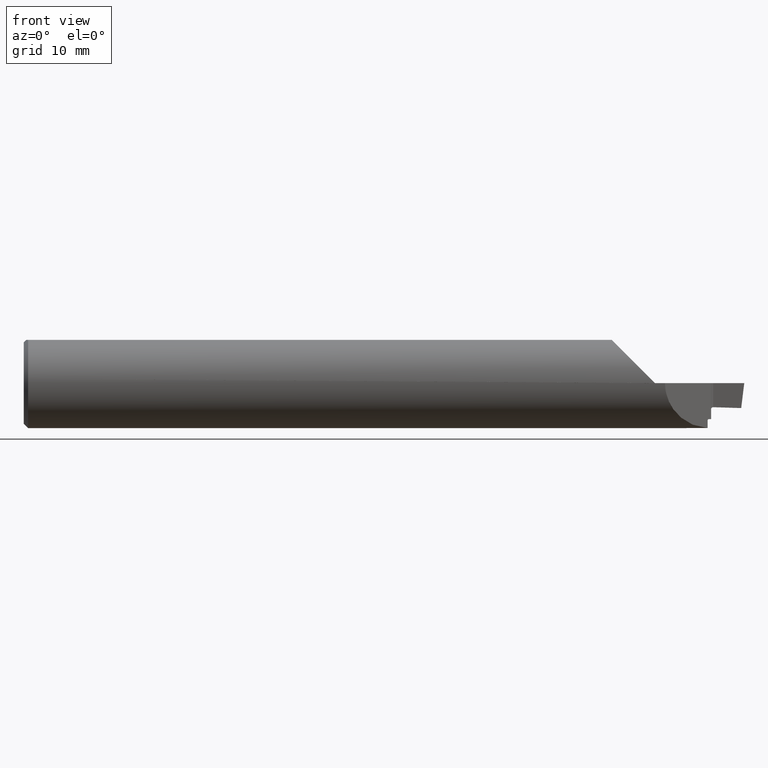
[diagram: clean part render]
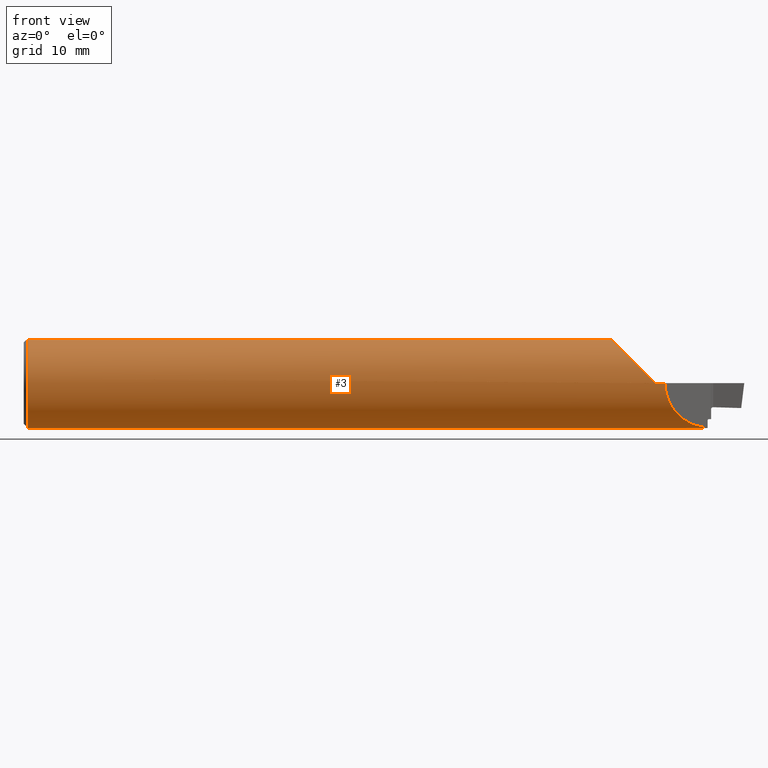
[diagram: same view with one face highlighted and labeled with its STEP entity id]
A machine part, front view. The second image highlights one B-rep face of the part: STEP entity #3.
In plain terms, the highlighted cylindrical surface (partial cylindrical patch) has radius 3.9649 mm, axis along (-1, -0, -0).
Its self-contained STEP definition (entity closure, byte-faithful):
#2 = CARTESIAN_POINT ( 'NONE',  ( 1.918500000000000316, 0.03081474338883895270, -0.1530283032313957403 ) ) ;
#3 = ADVANCED_FACE ( 'NONE', ( #369 ), #628, .T. ) ;
#14 = EDGE_CURVE ( 'NONE', #148, #140, #558, .T. ) ;
#22 = VERTEX_POINT ( 'NONE', #567 ) ;
#49 = VECTOR ( 'NONE', #631, 39.37007874015748143 ) ;
#51 = CIRCLE ( 'NONE', #116, 0.1560999999999999888 ) ;
#61 = CARTESIAN_POINT ( 'NONE',  ( 0.000000000000000000, -0.04286257108480545641, 0.1500999999999999834 ) ) ;
#74 = ORIENTED_EDGE ( 'NONE', *, *, #772, .T. ) ;
#75 = EDGE_CURVE ( 'NONE', #776, #186, #680, .T. ) ;
#79 = VERTEX_POINT ( 'NONE', #424 ) ;
#96 = VERTEX_POINT ( 'NONE', #496 ) ;
#104 = DIRECTION ( 'NONE',  ( 1.000000000000000000, 0.000000000000000000, 0.000000000000000000 ) ) ;
#110 = CARTESIAN_POINT ( 'NONE',  ( 0.01499999999999970281, 0.000000000000000000, -0.1560999999999999888 ) ) ;
#111 = DIRECTION ( 'NONE',  ( 0.000000000000000000, 0.000000000000000000, 1.000000000000000000 ) ) ;
#112 = DIRECTION ( 'NONE',  ( 1.000000000000000000, -3.711749991391663214E-17, 0.000000000000000000 ) ) ;
#113 = EDGE_CURVE ( 'NONE', #186, #148, #396, .T. ) ;
#114 = CARTESIAN_POINT ( 'NONE',  ( 0.000000000000000000, 0.000000000000000000, 0.000000000000000000 ) ) ;
#116 = AXIS2_PLACEMENT_3D ( 'NONE', #694, #556, #748 ) ;
#117 = VECTOR ( 'NONE', #402, 39.37007874015748143 ) ;
#118 = CARTESIAN_POINT ( 'NONE',  ( 2.039999999999999591, -0.04286257108480545641, 0.1500999999999999834 ) ) ;
#121 = LINE ( 'NONE', #61, #314 ) ;
#126 = ORIENTED_EDGE ( 'NONE', *, *, #263, .T. ) ;
#140 = VERTEX_POINT ( 'NONE', #517 ) ;
#148 = VERTEX_POINT ( 'NONE', #774 ) ;
#152 = ORIENTED_EDGE ( 'NONE', *, *, #501, .F. ) ;
#160 = CARTESIAN_POINT ( 'NONE',  ( 0.01499999999999970281, 0.04286257108480545641, 0.1500999999999999834 ) ) ;
#168 = CARTESIAN_POINT ( 'NONE',  ( 0.000000000000000000, -0.1560999999999999888, 0.000000000000000000 ) ) ;
#172 = CARTESIAN_POINT ( 'NONE',  ( 2.372167059642986242, 0.03081474338882099831, -0.1530283032314002645 ) ) ;
#186 = VERTEX_POINT ( 'NONE', #447 ) ;
#219 = EDGE_CURVE ( 'NONE', #776, #344, #457, .T. ) ;
#233 = CARTESIAN_POINT ( 'NONE',  ( 2.372391662347563379, 0.01794726306141073563, -0.1556193801497015861 ) ) ;
#238 = DIRECTION ( 'NONE',  ( 0.000000000000000000, 1.000000000000000000, 0.000000000000000000 ) ) ;
#246 = DIRECTION ( 'NONE',  ( 0.000000000000000000, 0.000000000000000000, -1.000000000000000000 ) ) ;
#263 = EDGE_CURVE ( 'NONE', #609, #96, #121, .T. ) ;
#268 = CARTESIAN_POINT ( 'NONE',  ( 2.039999999999999591, -0.04286257108480545641, 0.1500999999999999834 ) ) ;
#271 = CARTESIAN_POINT ( 'NONE',  ( 2.189999999999999947, -0.1560999679692472164, 9.999999999982123341E-05 ) ) ;
#277 = ORIENTED_EDGE ( 'NONE', *, *, #14, .T. ) ;
#279 = CARTESIAN_POINT ( 'NONE',  ( 0.000000000000000000, 0.04286257108480545641, 0.1500999999999999834 ) ) ;
#281 = ORIENTED_EDGE ( 'NONE', *, *, #518, .T. ) ;
#314 = VECTOR ( 'NONE', #374, 39.37007874015748143 ) ;
#323 = ORIENTED_EDGE ( 'NONE', *, *, #75, .T. ) ;
#326 = ORIENTED_EDGE ( 'NONE', *, *, #490, .F. ) ;
#342 = AXIS2_PLACEMENT_3D ( 'NONE', #489, #112, #238 ) ;
#344 = VERTEX_POINT ( 'NONE', #659 ) ;
#355 = CARTESIAN_POINT ( 'NONE',  ( 2.189999999999999947, 0.000000000000000000, 0.000000000000000000 ) ) ;
#366 = CARTESIAN_POINT ( 'NONE',  ( 2.285319229756169968, -0.09578077024382962434, -0.1512487100964495512 ) ) ;
#369 = FACE_OUTER_BOUND ( 'NONE', #394, .T. ) ;
#374 = DIRECTION ( 'NONE',  ( -1.000000000000000000, -0.000000000000000000, -0.000000000000000000 ) ) ;
#378 = AXIS2_PLACEMENT_3D ( 'NONE', #561, #104, #551 ) ;
#390 = CIRCLE ( 'NONE', #378, 0.1560999999999999888 ) ;
#392 = CARTESIAN_POINT ( 'NONE',  ( 2.117630523791210084, -0.1560536069884282118, 0.07246947620879010121 ) ) ;
#394 = EDGE_LOOP ( 'NONE', ( #665, #323, #485, #277, #326, #74, #126, #281, #675, #533, #152 ) ) ;
#396 =( BOUNDED_CURVE ( )  B_SPLINE_CURVE ( 3, ( #698, #366, #640, #507 ),
 .UNSPECIFIED., .F., .F. ) 
 B_SPLINE_CURVE_WITH_KNOTS ( ( 4, 4 ),
 ( 4.765271052396672147, 6.283185307179586232 ),
 .UNSPECIFIED. ) 
 CURVE ( )  GEOMETRIC_REPRESENTATION_ITEM ( )  RATIONAL_B_SPLINE_CURVE ( ( 1.000000000000000000, 0.8170360491703279049, 0.8170360491703279049, 1.000000000000000000 ) ) 
 REPRESENTATION_ITEM ( '' )  );
#398 = CARTESIAN_POINT ( 'NONE',  ( 2.059871508359184311, -0.1124504032942231085, 0.1302284916408148197 ) ) ;
#401 = VERTEX_POINT ( 'NONE', #160 ) ;
#402 = DIRECTION ( 'NONE',  ( 1.000000000000000000, 0.000000000000000000, 0.000000000000000000 ) ) ;
#409 = EDGE_CURVE ( 'NONE', #519, #401, #390, .T. ) ;
#419 = CARTESIAN_POINT ( 'NONE',  ( 2.372620164693000522, 0.004856372458775157046, -0.1565755772019202241 ) ) ;
#423 = AXIS2_PLACEMENT_3D ( 'NONE', #355, #818, #246 ) ;
#424 = CARTESIAN_POINT ( 'NONE',  ( 1.460000000000000187, 0.04286257108480545641, 0.1500999999999999834 ) ) ;
#447 = CARTESIAN_POINT ( 'NONE',  ( 2.372848955506936086, -0.008251044493063981050, -0.1558817829791970255 ) ) ;
#457 = LINE ( 'NONE', #2, #508 ) ;
#475 = LINE ( 'NONE', #279, #117 ) ;
#482 = CIRCLE ( 'NONE', #342, 0.1560999999999999888 ) ;
#485 = ORIENTED_EDGE ( 'NONE', *, *, #113, .T. ) ;
#489 = CARTESIAN_POINT ( 'NONE',  ( 1.460000000000000187, 0.000000000000000000, 0.000000000000000000 ) ) ;
#490 = EDGE_CURVE ( 'NONE', #22, #140, #713, .T. ) ;
#496 = CARTESIAN_POINT ( 'NONE',  ( 0.01499999999999943046, -0.04286257108480568540, 0.1500999999999999834 ) ) ;
#500 = CARTESIAN_POINT ( 'NONE',  ( 2.372848955506936086, -0.008251044493063981050, -0.1558817829791970255 ) ) ;
#501 = EDGE_CURVE ( 'NONE', #344, #79, #482, .T. ) ;
#507 = CARTESIAN_POINT ( 'NONE',  ( 2.224999999999999645, -0.1560999999999999888, 0.000000000000000000 ) ) ;
#508 = VECTOR ( 'NONE', #590, 39.37007874015748143 ) ;
#517 = CARTESIAN_POINT ( 'NONE',  ( 2.189999999999999947, -0.1560999999999999888, 0.000000000000000000 ) ) ;
#518 = EDGE_CURVE ( 'NONE', #96, #519, #51, .T. ) ;
#519 = VERTEX_POINT ( 'NONE', #110 ) ;
#533 = ORIENTED_EDGE ( 'NONE', *, *, #799, .T. ) ;
#535 = CARTESIAN_POINT ( 'NONE',  ( 2.372167059642986242, 0.03081474338882099831, -0.1530283032314002645 ) ) ;
#550 =( BOUNDED_CURVE ( )  B_SPLINE_CURVE ( 3, ( #271, #392, #398, #268 ),
 .UNSPECIFIED., .F., .F. ) 
 B_SPLINE_CURVE_WITH_KNOTS ( ( 4, 4 ),
 ( 4.713029595418896101, 6.005028202575334539 ),
 .UNSPECIFIED. ) 
 CURVE ( )  GEOMETRIC_REPRESENTATION_ITEM ( )  RATIONAL_B_SPLINE_CURVE ( ( 1.000000000000000000, 0.8656657255323875200, 0.8656657255323875200, 1.000000000000000000 ) ) 
 REPRESENTATION_ITEM ( '' )  );
#551 = DIRECTION ( 'NONE',  ( 0.000000000000000000, 0.000000000000000000, -1.000000000000000000 ) ) ;
#556 = DIRECTION ( 'NONE',  ( 1.000000000000000000, 0.000000000000000000, 0.000000000000000000 ) ) ;
#558 = LINE ( 'NONE', #168, #49 ) ;
#561 = CARTESIAN_POINT ( 'NONE',  ( 0.01499999999999970281, 0.000000000000000000, 0.000000000000000000 ) ) ;
#567 = CARTESIAN_POINT ( 'NONE',  ( 2.189999999999999947, -0.1560999679692472164, 9.999999999982123341E-05 ) ) ;
#573 = DIRECTION ( 'NONE',  ( -1.000000000000000000, -0.000000000000000000, -0.000000000000000000 ) ) ;
#590 = DIRECTION ( 'NONE',  ( -1.000000000000000000, 3.711749991391663214E-17, -0.000000000000000000 ) ) ;
#609 = VERTEX_POINT ( 'NONE', #118 ) ;
#628 = CYLINDRICAL_SURFACE ( 'NONE', #803, 0.1560999999999999888 ) ;
#631 = DIRECTION ( 'NONE',  ( -1.000000000000000000, -0.000000000000000000, -0.000000000000000000 ) ) ;
#640 = CARTESIAN_POINT ( 'NONE',  ( 2.225000000000000089, -0.1560999999999999888, -0.08765225755416182485 ) ) ;
#659 = CARTESIAN_POINT ( 'NONE',  ( 1.460000000000000187, 0.03081474338883832820, -0.1530283032313958513 ) ) ;
#665 = ORIENTED_EDGE ( 'NONE', *, *, #219, .F. ) ;
#675 = ORIENTED_EDGE ( 'NONE', *, *, #409, .T. ) ;
#680 =( BOUNDED_CURVE ( )  B_SPLINE_CURVE ( 3, ( #172, #233, #419, #500 ),
 .UNSPECIFIED., .F., .F. ) 
 B_SPLINE_CURVE_WITH_KNOTS ( ( 4, 4 ),
 ( 1.372087361718230314, 1.623678398806879697 ),
 .UNSPECIFIED. ) 
 CURVE ( )  GEOMETRIC_REPRESENTATION_ITEM ( )  RATIONAL_B_SPLINE_CURVE ( ( 1.000000000000000000, 0.9947321148142433955, 0.9947321148142433955, 1.000000000000000000 ) ) 
 REPRESENTATION_ITEM ( '' )  );
#694 = CARTESIAN_POINT ( 'NONE',  ( 0.01499999999999970281, 0.000000000000000000, 0.000000000000000000 ) ) ;
#698 = CARTESIAN_POINT ( 'NONE',  ( 2.372848955506936086, -0.008251044493063981050, -0.1558817829791970255 ) ) ;
#713 = CIRCLE ( 'NONE', #423, 0.1560999999999999888 ) ;
#748 = DIRECTION ( 'NONE',  ( 0.000000000000000000, 0.000000000000000000, -1.000000000000000000 ) ) ;
#772 = EDGE_CURVE ( 'NONE', #22, #609, #550, .T. ) ;
#774 = CARTESIAN_POINT ( 'NONE',  ( 2.224999999999999645, -0.1560999999999999888, 0.000000000000000000 ) ) ;
#776 = VERTEX_POINT ( 'NONE', #535 ) ;
#799 = EDGE_CURVE ( 'NONE', #401, #79, #475, .T. ) ;
#803 = AXIS2_PLACEMENT_3D ( 'NONE', #114, #573, #111 ) ;
#818 = DIRECTION ( 'NONE',  ( 1.000000000000000000, 0.000000000000000000, -0.000000000000000000 ) ) ;